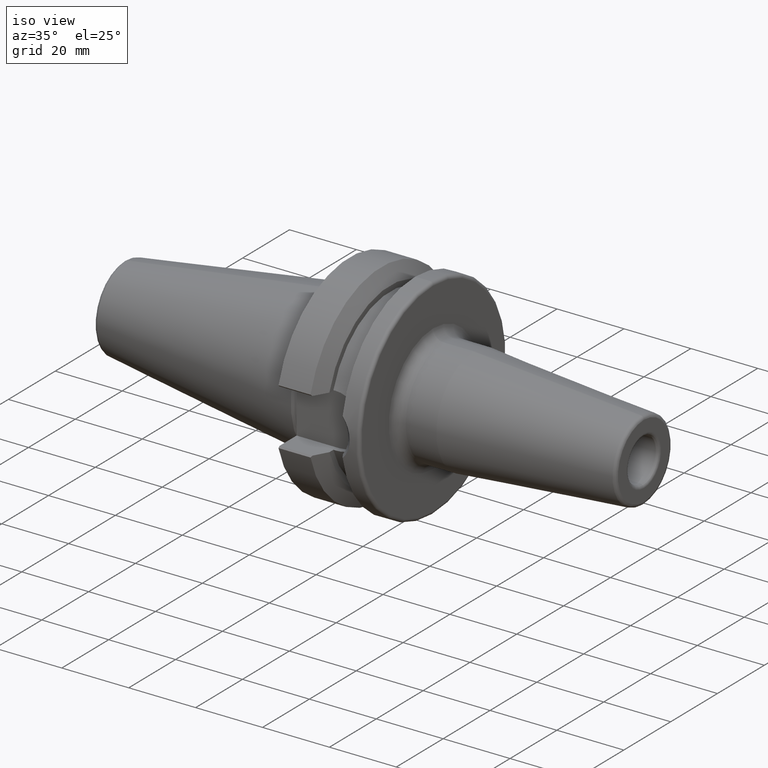
[diagram: clean part render]
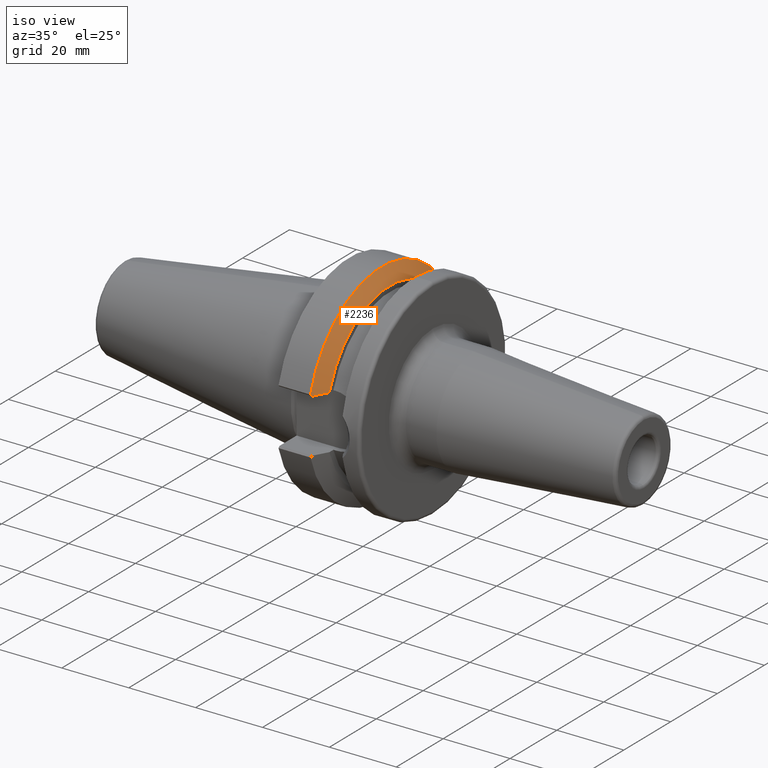
[diagram: same view with one face highlighted and labeled with its STEP entity id]
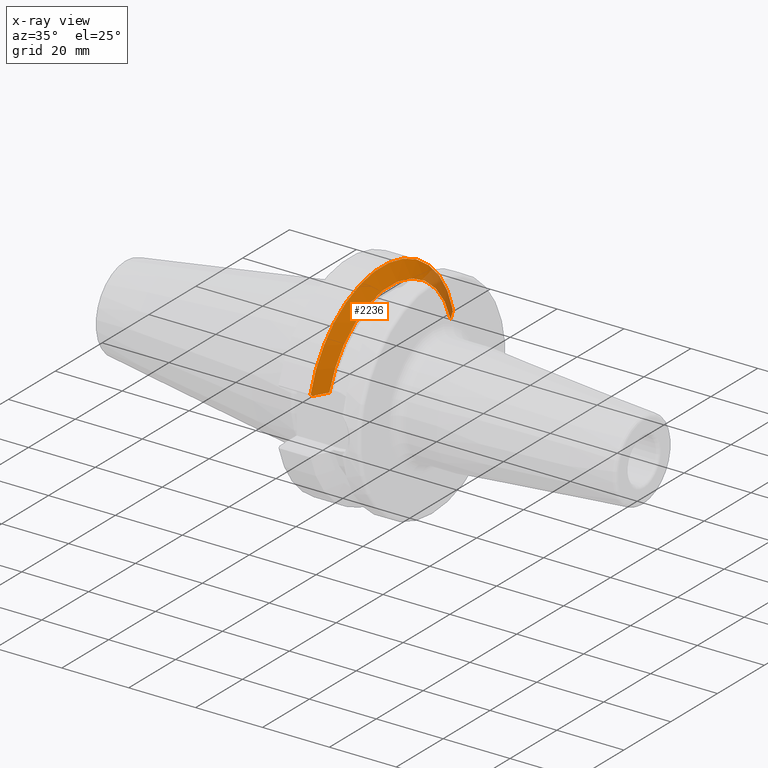
[diagram: x-ray of the same camera — body ghosted, the highlighted face saturated]
A machine part, iso view. The second image highlights one B-rep face of the part: STEP entity #2236.
The next image is the same camera in x-ray: the body ghosted, the highlighted face saturated — about 11% of this face is hidden behind the body in this view.
In plain terms, the highlighted conical surface has half-angle 60 deg.
Its self-contained STEP definition (entity closure, byte-faithful):
#750=CARTESIAN_POINT('',(1.187809346105E1,-2.99E1,8.05E0));
#751=CARTESIAN_POINT('',(1.213608092362E1,-2.943724098956E1,8.05E0));
#752=CARTESIAN_POINT('',(1.264468361145E1,-2.852349489558E1,8.05E0));
#753=CARTESIAN_POINT('',(1.338523875630E1,-2.718836773100E1,8.05E0));
#754=CARTESIAN_POINT('',(1.386422691872E1,-2.632143557624E1,8.05E0));
#755=CARTESIAN_POINT('',(1.41E1,-2.589378524176E1,8.05E0));
#757=CARTESIAN_POINT('',(1.187809346105E1,-2.99E1,8.05E0));
#758=CARTESIAN_POINT('',(1.182713521652E1,-2.997201619131E1,8.122016191313E0));
#759=CARTESIAN_POINT('',(1.172466733692E1,-3.011662367171E1,8.266623671706E0));
#760=CARTESIAN_POINT('',(1.162109709478E1,-3.026238149525E1,8.412381495246E0));
#761=CARTESIAN_POINT('',(1.15690365E1,-3.033554803451E1,8.485548034509E0));
#763=CARTESIAN_POINT('',(1.15690365E1,0.E0,0.E0));
#764=DIRECTION('',(-1.E0,0.E0,0.E0));
#765=DIRECTION('',(0.E0,-9.630332709368E-1,2.693824772860E-1));
#766=AXIS2_PLACEMENT_3D('',#763,#764,#765);
#768=CARTESIAN_POINT('',(1.15690365E1,3.033554803451E1,8.485548034509E0));
#769=CARTESIAN_POINT('',(1.160374372037E1,3.028677012076E1,8.436770120760E0));
#770=CARTESIAN_POINT('',(1.167291318461E1,3.018947011785E1,8.339470117850E0));
#771=CARTESIAN_POINT('',(1.177593175280E1,3.004428820337E1,8.194288203375E0));
#772=CARTESIAN_POINT('',(1.184412122820E1,2.994801089289E1,8.098010892889E0));
#773=CARTESIAN_POINT('',(1.187809346105E1,2.99E1,8.05E0));
#775=CARTESIAN_POINT('',(1.41E1,2.589378524176E1,8.05E0));
#776=CARTESIAN_POINT('',(1.386450321254E1,2.632093442852E1,8.05E0));
#777=CARTESIAN_POINT('',(1.338588549183E1,2.718719892029E1,8.05E0));
#778=CARTESIAN_POINT('',(1.264535440845E1,2.852228833534E1,8.05E0));
#779=CARTESIAN_POINT('',(1.213636912487E1,2.943672403527E1,8.05E0));
#780=CARTESIAN_POINT('',(1.187809346105E1,2.99E1,8.05E0));
#782=CARTESIAN_POINT('',(1.41E1,0.E0,0.E0));
#783=DIRECTION('',(1.E0,0.E0,0.E0));
#784=DIRECTION('',(0.E0,9.549178917964E-1,2.968700387830E-1));
#785=AXIS2_PLACEMENT_3D('',#782,#783,#784);
#1002=CARTESIAN_POINT('',(1.41E1,2.589378524176E1,8.05E0));
#1004=VERTEX_POINT('',#1002);
#1104=VERTEX_POINT('',#768);
#1105=VERTEX_POINT('',#773);
#1118=CARTESIAN_POINT('',(1.15690365E1,-3.033554803451E1,8.485548034509E0));
#1120=VERTEX_POINT('',#1118);
#1134=VERTEX_POINT('',#750);
#1135=VERTEX_POINT('',#755);
#2218=CARTESIAN_POINT('',(1.283451825E1,0.E0,0.E0));
#2219=DIRECTION('',(-1.E0,0.E0,0.E0));
#2220=DIRECTION('',(0.E0,0.E0,-1.E0));
#2221=AXIS2_PLACEMENT_3D('',#2218,#2219,#2220);
#2222=CONICAL_SURFACE('',#2221,2.930812131295E1,6.E1);
#2224=ORIENTED_EDGE('',*,*,#2223,.F.);
#2226=ORIENTED_EDGE('',*,*,#2225,.T.);
#2227=ORIENTED_EDGE('',*,*,#2184,.T.);
#2229=ORIENTED_EDGE('',*,*,#2228,.T.);
#2231=ORIENTED_EDGE('',*,*,#2230,.F.);
#2233=ORIENTED_EDGE('',*,*,#2232,.T.);
#2234=EDGE_LOOP('',(#2224,#2226,#2227,#2229,#2231,#2233));
#2235=FACE_OUTER_BOUND('',#2234,.F.);
#2236=ADVANCED_FACE('',(#2235),#2222,.T.);
#756=B_SPLINE_CURVE_WITH_KNOTS('',3,(#750,#751,#752,#753,#754,#755),
.UNSPECIFIED.,.F.,.F.,(4,1,1,4),(0.E0,3.333333333333E-1,6.666666666667E-1,1.E0),
.UNSPECIFIED.);
#762=B_SPLINE_CURVE_WITH_KNOTS('',3,(#757,#758,#759,#760,#761),.UNSPECIFIED.,
.F.,.F.,(4,1,4),(0.E0,5.E-1,1.E0),.UNSPECIFIED.);
#767=CIRCLE('',#766,3.15E1);
#774=B_SPLINE_CURVE_WITH_KNOTS('',3,(#768,#769,#770,#771,#772,#773),
.UNSPECIFIED.,.F.,.F.,(4,1,1,4),(0.E0,3.333333333333E-1,6.666666666667E-1,1.E0),
.UNSPECIFIED.);
#781=B_SPLINE_CURVE_WITH_KNOTS('',3,(#775,#776,#777,#778,#779,#780),
.UNSPECIFIED.,.F.,.F.,(4,1,1,4),(0.E0,3.333333333333E-1,6.666666666667E-1,1.E0),
.UNSPECIFIED.);
#786=CIRCLE('',#785,2.711624262590E1);
#2184=EDGE_CURVE('',#1120,#1104,#767,.T.);
#2223=EDGE_CURVE('',#1134,#1135,#756,.T.);
#2225=EDGE_CURVE('',#1134,#1120,#762,.T.);
#2228=EDGE_CURVE('',#1104,#1105,#774,.T.);
#2230=EDGE_CURVE('',#1004,#1105,#781,.T.);
#2232=EDGE_CURVE('',#1004,#1135,#786,.T.);